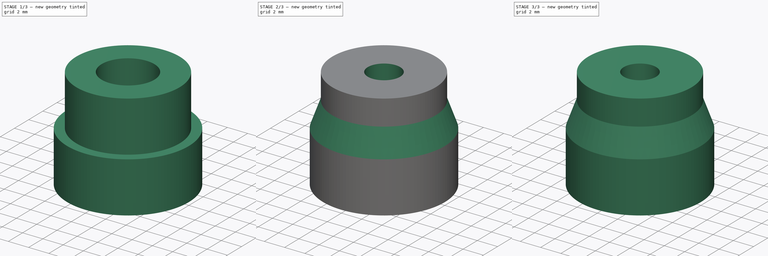
[diagram: build sequence overview — one tinted view per stage of 3, left to right]
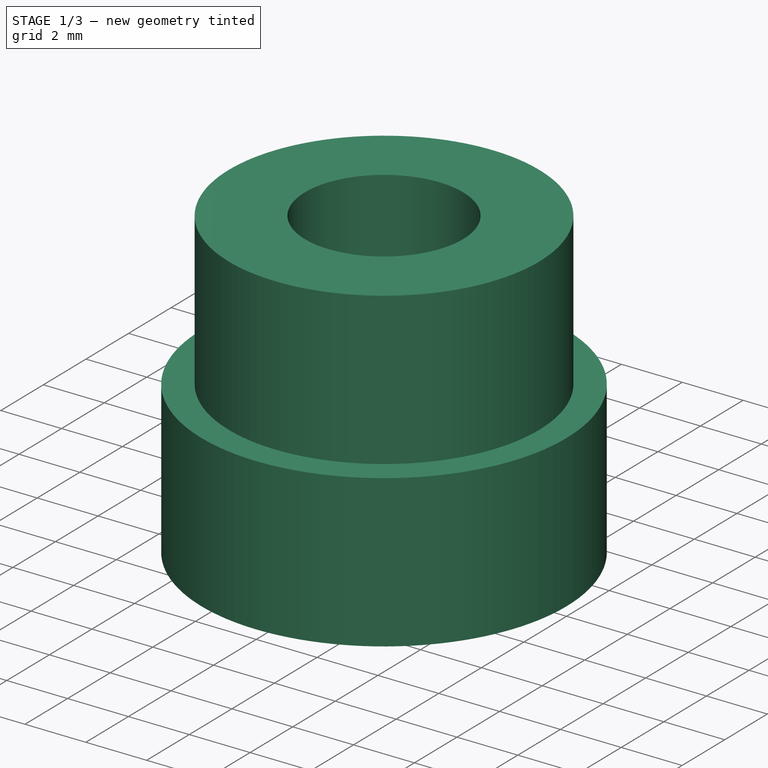
[diagram: stage 1 of 3 — iso view after this stage's code; geometry added in this stage tinted green]
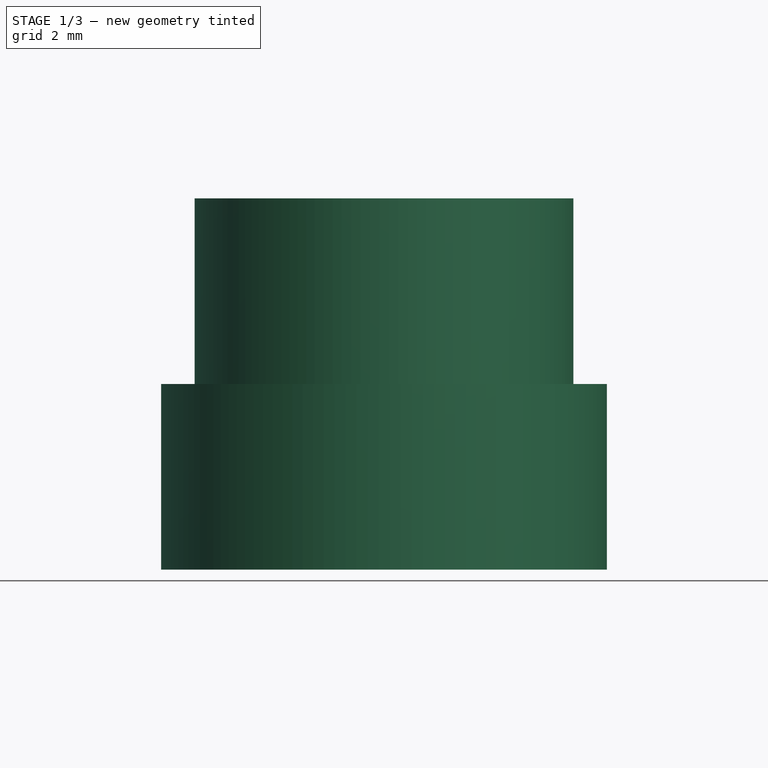
[diagram: stage 1 of 3 — front view after this stage's code; geometry added in this stage tinted green]
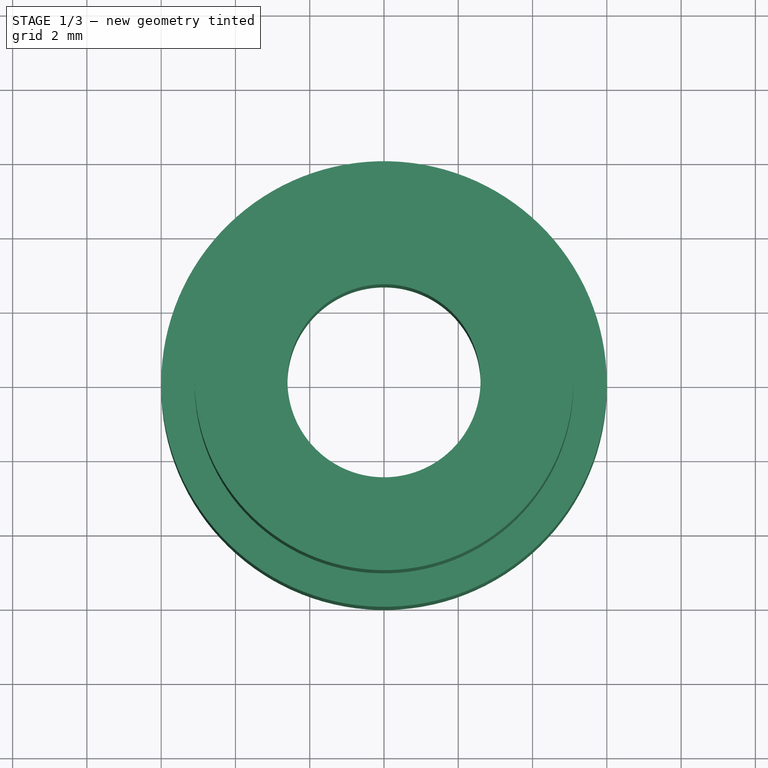
[diagram: stage 1 of 3 — top view after this stage's code; geometry added in this stage tinted green]
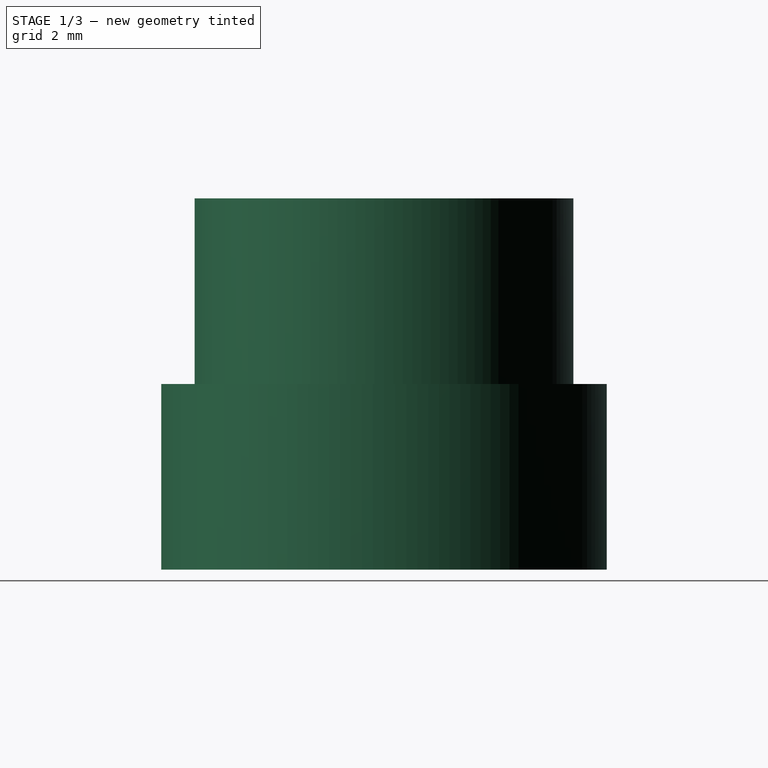
[diagram: stage 1 of 3 — right view after this stage's code; geometry added in this stage tinted green]
FCSTD DOCUMENT  (FreeCAD 0.20R29177 +426 (Git))
Label: EngineShaft
License: All rights reserved
LicenseURL: http://en.wikipedia.org/wiki/All_rights_reserved
objects: Sketcher::SketchObject×6, PartDesign::Pad×4, PartDesign::Revolution×2, PartDesign::Body×2, Spreadsheet::Sheet×1
note: 20 computed .brp shape members not serialized (recipe doc carries the construction recipe); baked Part::Feature solids carry a one-line shape summary decoded from their .brp

FEATURE [PartDesign::Body] Body
  Group = -> [Sketch,Pad,Sketch001,Pad001,Sketch002,Revolution]
  Origin = -> Origin
  Tip = -> Revolution
FEATURE [Spreadsheet::Sheet] Spreadsheet
  cells = A2=topShaftR; B2(topShaftR)=5.1; A3=motorShaftSmall; B3(motorShaftSmall)=1.6; C3=for 1.5mm R motor shaft; A4=bottomShaftR; B4(bottomShaftR)=6; A5=femalHexR; B5(femalHexR)=4.965; A7=topShaftPad; B7(topShaftPad)=5; A9=motorShaft25; B9(motorShaft25)=2.6
FEATURE [Sketcher::SketchObject] Sketch003
  FullyConstrained = true
  MapMode = 5
  Support = -> [XY_Plane]
  expr: Constraints[1] = Spreadsheet.topShaftR
  expr: Constraints[3] = Spreadsheet.motorShaft25
  sketch-geometry (2):
    g0: Circle CenterX=0 CenterY=0 CenterZ=0 NormalX=0 NormalY=0 NormalZ=1 AngleXU=0 Radius=5.1
    g1: Circle CenterX=0 CenterY=0 CenterZ=0 NormalX=0 NormalY=0 NormalZ=1 AngleXU=0 Radius=2.6
  constraints (4):
    c: Coincident(g0,g-1)
    c: Radius(g0) = 5.1
    c: Coincident(g1,g0)
    c: Radius(g1) = 2.6
FEATURE [PartDesign::Pad] Pad002
  Direction = (0,0,1)
  Length = 5
  Length2 = 10
  Profile = -> Sketch003
  ReferenceAxis = -> Sketch003 [N_Axis]
  Type = 0
  expr: Length = Spreadsheet.topShaftPad
FEATURE [Sketcher::SketchObject] Sketch004
  FullyConstrained = true
  MapMode = 5
  Support = -> [XY_Plane]
  expr: Constraints[0] = Spreadsheet.bottomShaftR
  expr: Constraints[20] = Spreadsheet.femalHexR
  sketch-geometry (8):
    g0: Circle CenterX=0 CenterY=0 CenterZ=0 NormalX=0 NormalY=0 NormalZ=1 AngleXU=0 Radius=6
    g1: LineSegment StartX=2.4825 StartY=4.29982 StartZ=0 EndX=-2.4825 EndY=4.29982 EndZ=0
    g2: LineSegment StartX=-2.4825 StartY=4.29982 StartZ=0 EndX=-4.965 EndY=0 EndZ=0
    g3: LineSegment StartX=-4.965 StartY=0 StartZ=0 EndX=-2.4825 EndY=-4.29982 EndZ=0
    g4: LineSegment StartX=-2.4825 StartY=-4.29982 StartZ=0 EndX=2.4825 EndY=-4.29982 EndZ=0
    g5: LineSegment StartX=2.4825 StartY=-4.29982 StartZ=0 EndX=4.965 EndY=0 EndZ=0
    g6: LineSegment StartX=4.965 StartY=0 StartZ=0 EndX=2.4825 EndY=4.29982 EndZ=0
    g7: Circle CenterX=0 CenterY=0 CenterZ=0 NormalX=0 NormalY=0 NormalZ=1 AngleXU=0 Radius=4.965
  constraints (18):
    c: Radius(g0) = 6
    c: Coincident(g1,g2)
    c: Coincident(g2,g3)
    c: Coincident(g3,g4)
    c: Coincident(g4,g5)
    c: Coincident(g5,g6)
    c: Coincident(g6,g1)
    c: Equal(g1, g2-g6) x5
    c: PointOnObject(g1,g7)
    c: PointOnObject(g2,g7)
    c: PointOnObject(g3,g7)
    c: PointOnObject(g4,g7)
    c: PointOnObject(g5,g7)
    c: PointOnObject(g6,g7)
    c: Coincident(g7,g-1)
    c: Coincident(g0,g7)
    c: Radius(g7) = 4.965
    c: PointOnObject(g5,g-1)
FEATURE [PartDesign::Pad] Pad003
  BaseFeature = -> Pad002
  Direction = (0,0,1)
  Length = 5
  Length2 = 10
  Profile = -> Sketch004
  ReferenceAxis = -> Sketch004 [N_Axis]
  Reversed = true
  Type = 0
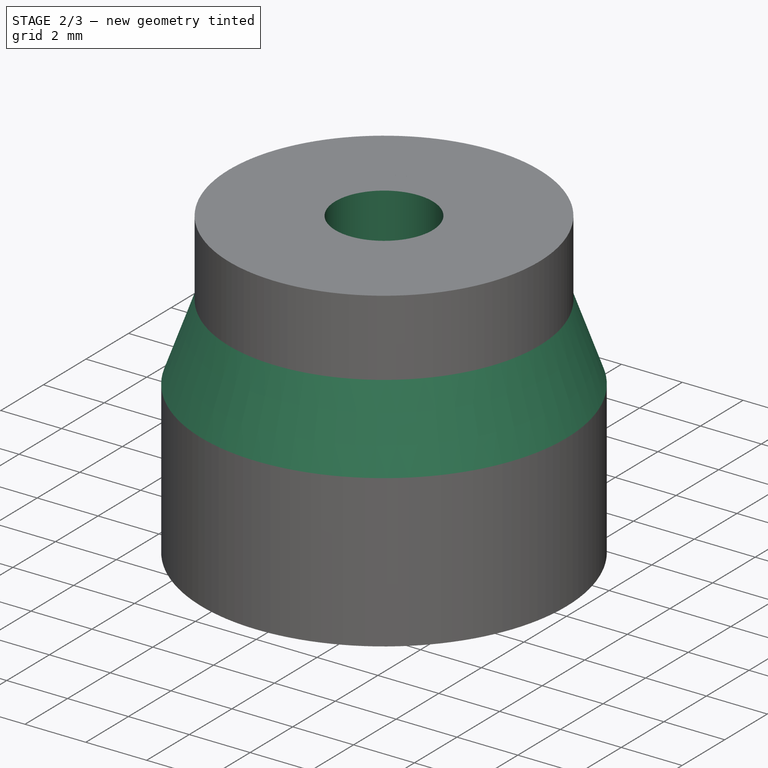
[diagram: stage 2 of 3 — iso view after this stage's code; geometry added in this stage tinted green]
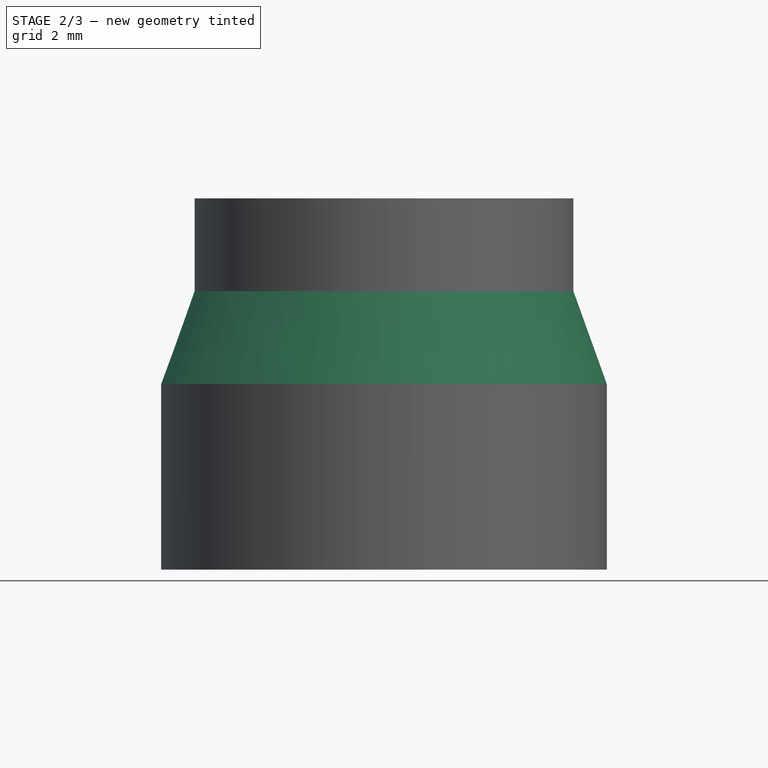
[diagram: stage 2 of 3 — front view after this stage's code; geometry added in this stage tinted green]
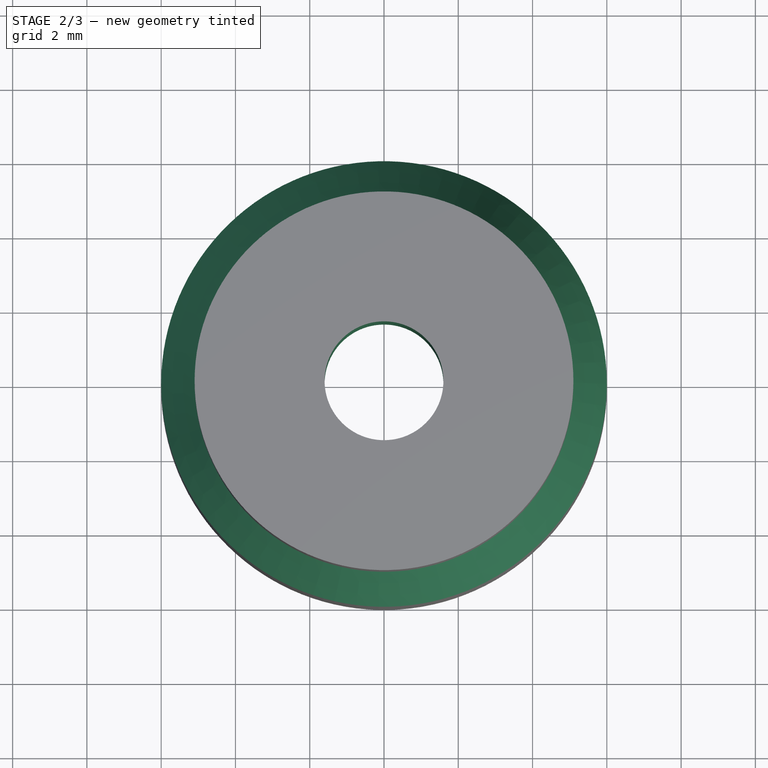
[diagram: stage 2 of 3 — top view after this stage's code; geometry added in this stage tinted green]
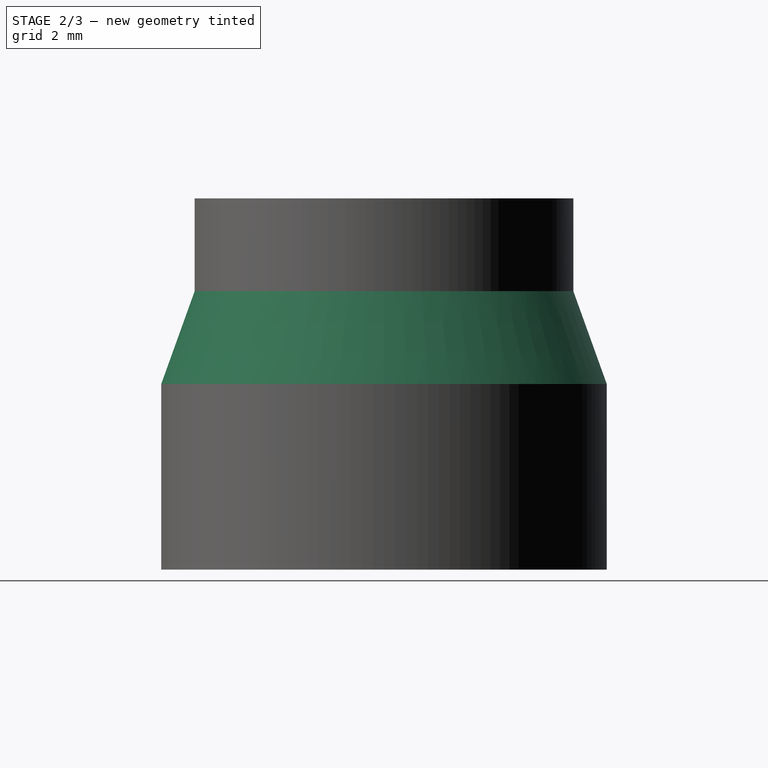
[diagram: stage 2 of 3 — right view after this stage's code; geometry added in this stage tinted green]
FEATURE [Sketcher::SketchObject] Sketch
  FullyConstrained = true
  MapMode = 5
  Support = -> [XY_Plane]
  expr: Constraints[1] = Spreadsheet.topShaftR
  expr: Constraints[3] = Spreadsheet.motorShaftSmall
  sketch-geometry (2):
    g0: Circle CenterX=0 CenterY=0 CenterZ=0 NormalX=0 NormalY=0 NormalZ=1 AngleXU=0 Radius=5.1
    g1: Circle CenterX=0 CenterY=0 CenterZ=0 NormalX=0 NormalY=0 NormalZ=1 AngleXU=0 Radius=1.6
  constraints (4):
    c: Coincident(g0,g-1)
    c: Radius(g0) = 5.1
    c: Coincident(g1,g0)
    c: Radius(g1) = 1.6
FEATURE [PartDesign::Pad] Pad
  Direction = (0,0,1)
  Length = 5
  Length2 = 10
  Profile = -> Sketch
  ReferenceAxis = -> Sketch [N_Axis]
  Type = 0
  expr: Length = Spreadsheet.topShaftPad
FEATURE [Sketcher::SketchObject] Sketch005
  ExternalGeometry = -> [Pad003]
  FullyConstrained = true
  MapMode = 5
  Placement = pos=(0,0,0) rot=(1,0,0;1.5708rad)
  Support = -> [XZ_Plane]
  expr: Constraints[6] = Spreadsheet.topShaftPad / 2
  sketch-geometry (3):
    g0: LineSegment StartX=6 StartY=0 StartZ=0 EndX=5.1 EndY=2.5 EndZ=0
    g1: LineSegment StartX=5.1 StartY=2.5 StartZ=0 EndX=5.1 EndY=0 EndZ=0
    g2: LineSegment StartX=5.1 StartY=0 StartZ=0 EndX=6 EndY=0 EndZ=0
  constraints (7):
    c: Coincident(g0,g-3)
    c: PointOnObject(g0,g-4)
    c: Coincident(g1,g0)
    c: Coincident(g1,g-4)
    c: Coincident(g2,g1)
    c: Coincident(g2,g0)
    c: DistanceY(g1,g1) = 2.5
FEATURE [PartDesign::Revolution] Revolution001
  Angle = 360
  Axis = (0,-2e-16,1)
  Base = (0,0,0)
  BaseFeature = -> Pad003
  Profile = -> Sketch005
  ReferenceAxis = -> Sketch005 [V_Axis]
  Reversed = true
FEATURE [PartDesign::Body] Body001  label="Body001ShaftConnectorBrushless2.5"
  Group = -> [Sketch003,Pad002,Sketch004,Pad003,Sketch005,Revolution001]
  Origin = -> Origin001
  Tip = -> Revolution001
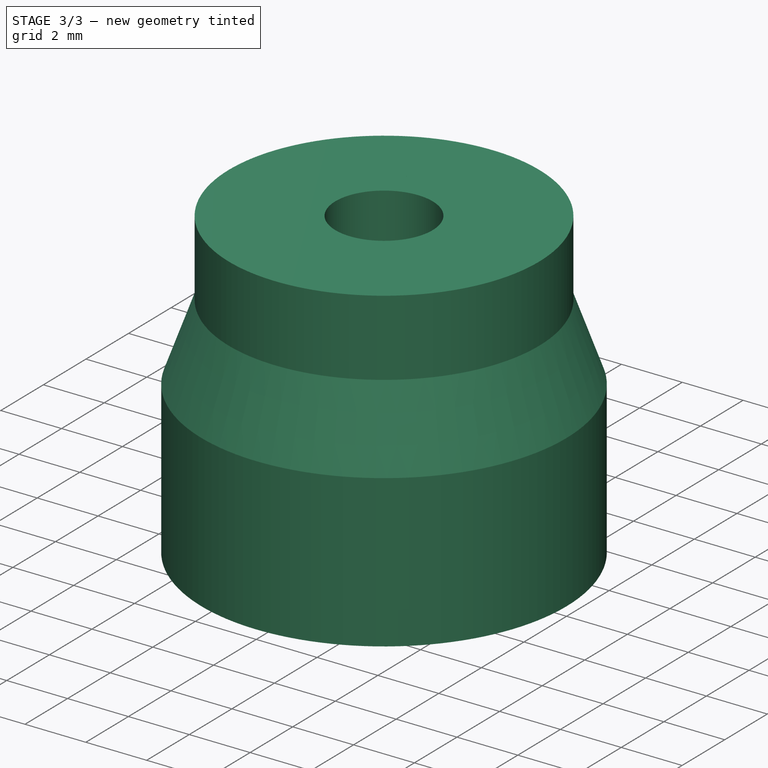
[diagram: stage 3 of 3 — iso view after this stage's code; geometry added in this stage tinted green]
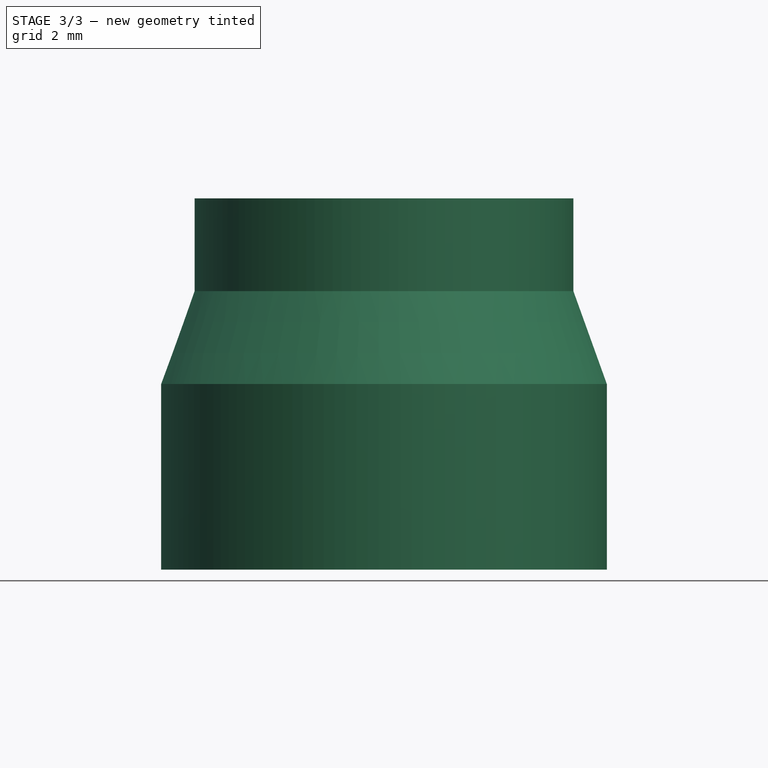
[diagram: stage 3 of 3 — front view after this stage's code; geometry added in this stage tinted green]
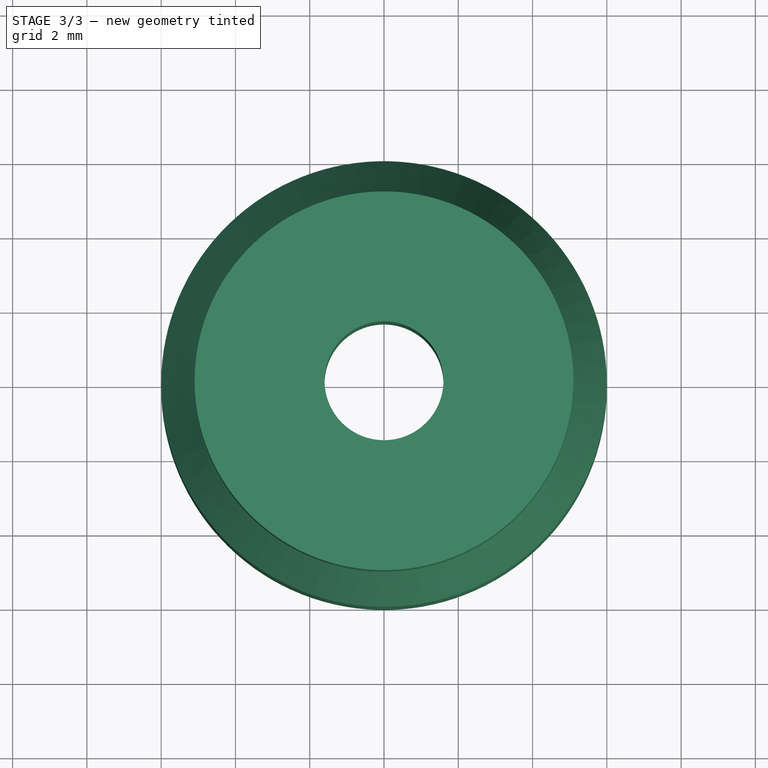
[diagram: stage 3 of 3 — top view after this stage's code; geometry added in this stage tinted green]
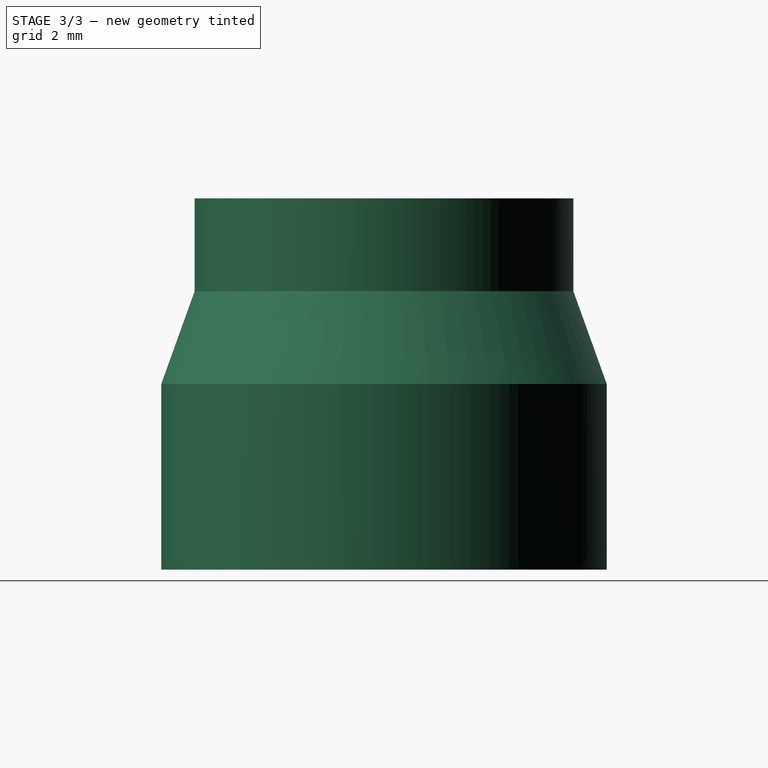
[diagram: stage 3 of 3 — right view after this stage's code; geometry added in this stage tinted green]
FEATURE [Sketcher::SketchObject] Sketch001
  FullyConstrained = true
  MapMode = 5
  Support = -> [XY_Plane]
  expr: Constraints[0] = Spreadsheet.bottomShaftR
  expr: Constraints[20] = Spreadsheet.femalHexR
  sketch-geometry (8):
    g0: Circle CenterX=0 CenterY=0 CenterZ=0 NormalX=0 NormalY=0 NormalZ=1 AngleXU=0 Radius=6
    g1: LineSegment StartX=2.4825 StartY=4.29982 StartZ=0 EndX=-2.4825 EndY=4.29982 EndZ=0
    g2: LineSegment StartX=-2.4825 StartY=4.29982 StartZ=0 EndX=-4.965 EndY=0 EndZ=0
    g3: LineSegment StartX=-4.965 StartY=0 StartZ=0 EndX=-2.4825 EndY=-4.29982 EndZ=0
    g4: LineSegment StartX=-2.4825 StartY=-4.29982 StartZ=0 EndX=2.4825 EndY=-4.29982 EndZ=0
    g5: LineSegment StartX=2.4825 StartY=-4.29982 StartZ=0 EndX=4.965 EndY=0 EndZ=0
    g6: LineSegment StartX=4.965 StartY=0 StartZ=0 EndX=2.4825 EndY=4.29982 EndZ=0
    g7: Circle CenterX=0 CenterY=0 CenterZ=0 NormalX=0 NormalY=0 NormalZ=1 AngleXU=0 Radius=4.965
  constraints (18):
    c: Radius(g0) = 6
    c: Coincident(g1,g2)
    c: Coincident(g2,g3)
    c: Coincident(g3,g4)
    c: Coincident(g4,g5)
    c: Coincident(g5,g6)
    c: Coincident(g6,g1)
    c: Equal(g1, g2-g6) x5
    c: PointOnObject(g1,g7)
    c: PointOnObject(g2,g7)
    c: PointOnObject(g3,g7)
    c: PointOnObject(g4,g7)
    c: PointOnObject(g5,g7)
    c: PointOnObject(g6,g7)
    c: Coincident(g7,g-1)
    c: Coincident(g0,g7)
    c: Radius(g7) = 4.965
    c: PointOnObject(g5,g-1)
FEATURE [PartDesign::Pad] Pad001
  BaseFeature = -> Pad
  Direction = (0,0,1)
  Length = 5
  Length2 = 10
  Profile = -> Sketch001
  ReferenceAxis = -> Sketch001 [N_Axis]
  Reversed = true
  Type = 0
FEATURE [Sketcher::SketchObject] Sketch002
  ExternalGeometry = -> [Pad001]
  FullyConstrained = true
  MapMode = 5
  Placement = pos=(0,0,0) rot=(1,0,0;1.5708rad)
  Support = -> [XZ_Plane]
  expr: Constraints[6] = Spreadsheet.topShaftPad / 2
  sketch-geometry (3):
    g0: LineSegment StartX=6 StartY=0 StartZ=0 EndX=5.1 EndY=2.5 EndZ=0
    g1: LineSegment StartX=5.1 StartY=2.5 StartZ=0 EndX=5.1 EndY=0 EndZ=0
    g2: LineSegment StartX=5.1 StartY=0 StartZ=0 EndX=6 EndY=0 EndZ=0
  constraints (7):
    c: Coincident(g0,g-3)
    c: PointOnObject(g0,g-4)
    c: Coincident(g1,g0)
    c: Coincident(g1,g-4)
    c: Coincident(g2,g1)
    c: Coincident(g2,g0)
    c: DistanceY(g1,g1) = 2.5
FEATURE [PartDesign::Revolution] Revolution
  Angle = 360
  Axis = (0,-2e-16,1)
  Base = (0,0,0)
  BaseFeature = -> Pad001
  Profile = -> Sketch002
  ReferenceAxis = -> Sketch002 [V_Axis]
  Reversed = true
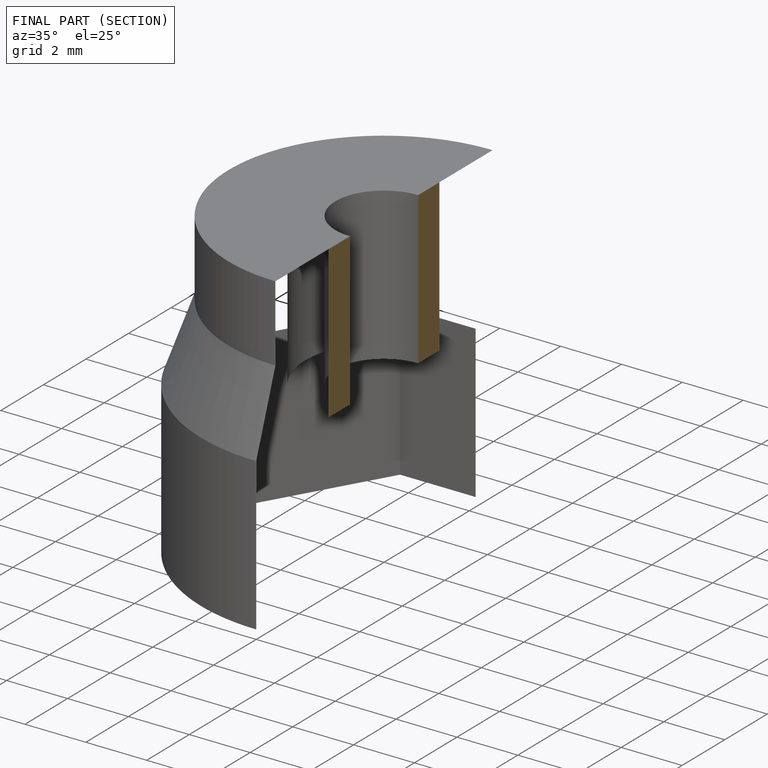
[diagram: finished part — half-section view (interior)]
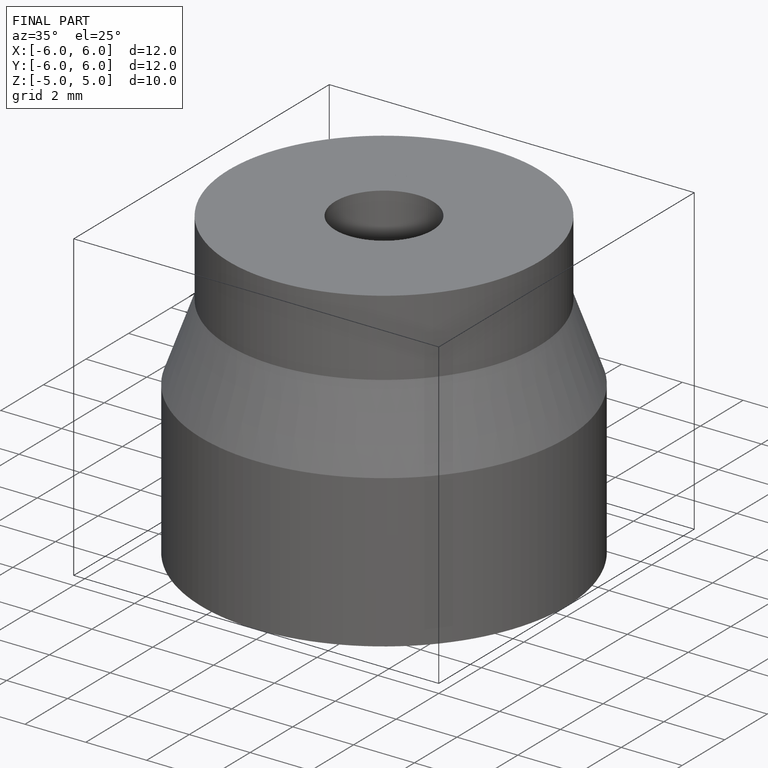
[diagram: finished part — iso view with bounding-box wireframe]
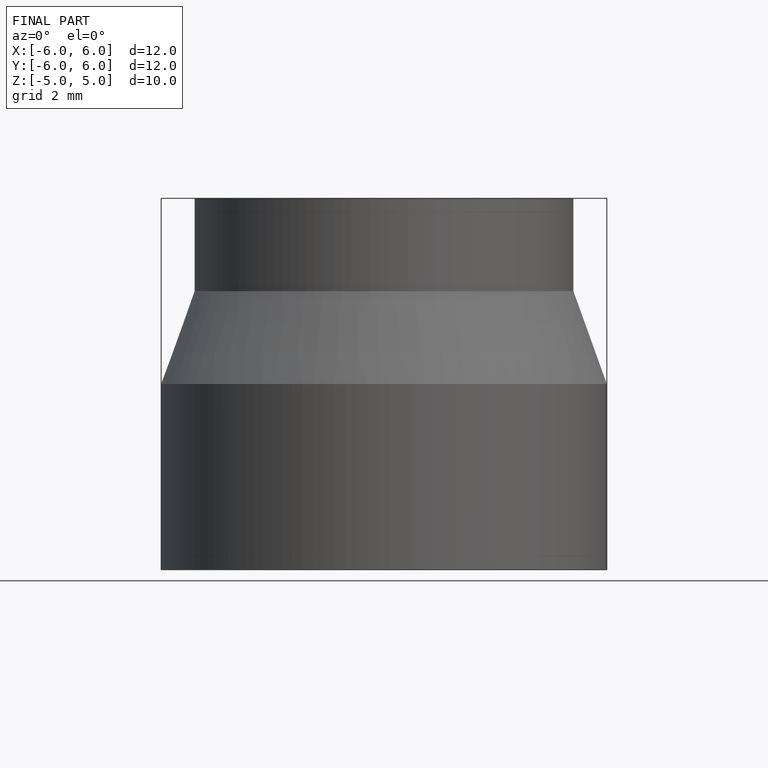
[diagram: finished part — front view with bounding-box wireframe]
